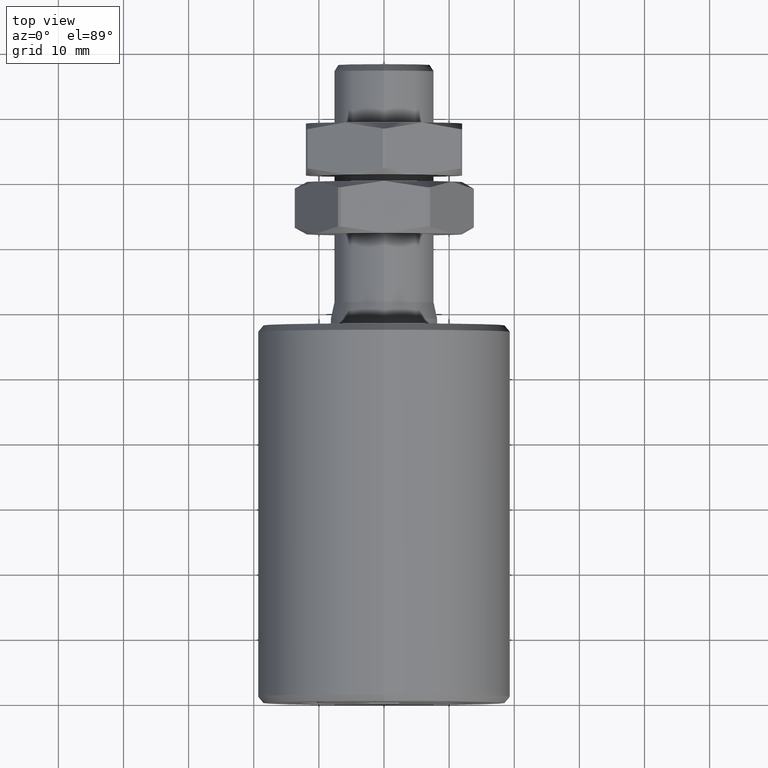
[diagram: clean part render]
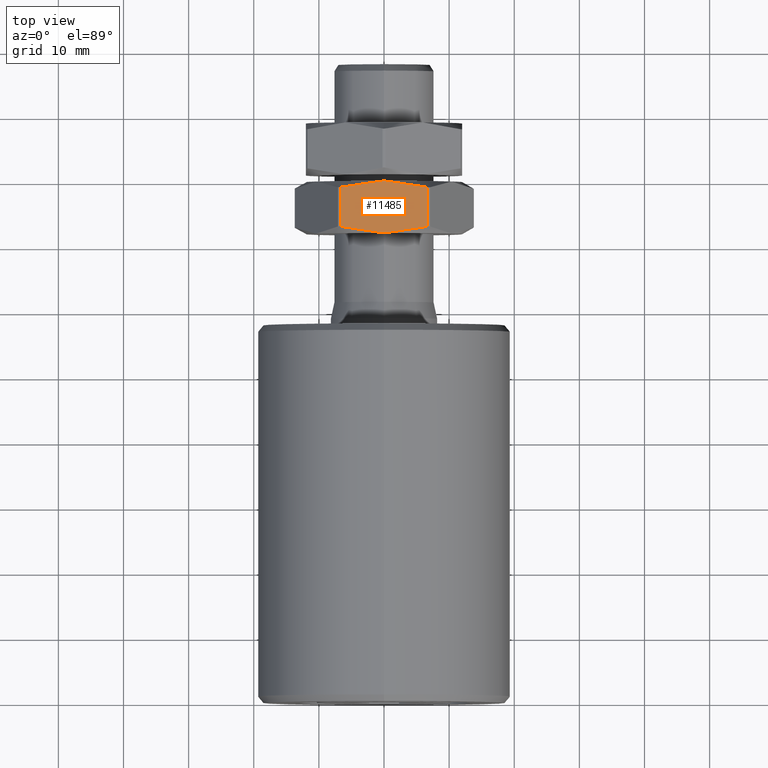
[diagram: same view with one face highlighted and labeled with its STEP entity id]
A machine part, top view. The second image highlights one B-rep face of the part: STEP entity #11485.
In plain terms, the highlighted planar face has unit normal (0, 0, -1).
Its self-contained STEP definition (entity closure, byte-faithful):
#137 = CARTESIAN_POINT ( 'NONE',  ( -6.639528095680689468, 4.000000000000000000, 12.00000000000000000 ) ) ;
#582 = ORIENTED_EDGE ( 'NONE', *, *, #4692, .T. ) ;
#618 = B_SPLINE_CURVE_WITH_KNOTS ( 'NONE', 3,
 ( #3241, #12665, #13918, #3346, #10226, #11579, #9253, #3190 ),
 .UNSPECIFIED., .F., .F.,
 ( 4, 2, 2, 4 ),
 ( 0.01936970057594180825, 0.02104774807343687271, 0.02272579557093193717, 0.02608189056592206609 ),
 .UNSPECIFIED. ) ;
#709 = CARTESIAN_POINT ( 'NONE',  ( 0.5605972413833055779, 4.000000000000000000, 12.00000000000000178 ) ) ;
#1264 = CARTESIAN_POINT ( 'NONE',  ( -4.450555589882174701, 3.564590613802869346, 12.00000000000000178 ) ) ;
#1314 = VERTEX_POINT ( 'NONE', #9175 ) ;
#1474 = CARTESIAN_POINT ( 'NONE',  ( 6.639528095680693909, 4.000000000000000000, 12.00000000000000000 ) ) ;
#1612 = LINE ( 'NONE', #137, #11108 ) ;
#1765 = CARTESIAN_POINT ( 'NONE',  ( -5.557285300470971023, -3.312721408234605480, 11.99999999999999822 ) ) ;
#1825 = EDGE_CURVE ( 'NONE', #11648, #5638, #1612, .T. ) ;
#1875 = CARTESIAN_POINT ( 'NONE',  ( -4.450555589882172924, -3.564590613802868901, 12.00000000000000178 ) ) ;
#2217 = CARTESIAN_POINT ( 'NONE',  ( -6.735557395310443749E-17, 4.000000000000000000, 12.00000000000000000 ) ) ;
#2236 = B_SPLINE_CURVE_WITH_KNOTS ( 'NONE', 3,
 ( #2675, #10997, #13395, #7839, #5555, #15019, #709, #3047 ),
 .UNSPECIFIED., .F., .F.,
 ( 4, 2, 2, 4 ),
 ( 0.005378634189493580742, 0.008726149205378667950, 0.01039990671332120982, 0.01207366422126375342 ),
 .UNSPECIFIED. ) ;
#2351 = PLANE ( 'NONE',  #11637 ) ;
#2411 = ORIENTED_EDGE ( 'NONE', *, *, #15076, .T. ) ;
#2571 = CARTESIAN_POINT ( 'NONE',  ( -6.639528095681156650, 3.010220883462259245, 12.00000000000000000 ) ) ;
#2579 = ORIENTED_EDGE ( 'NONE', *, *, #3008, .T. ) ;
#2675 = CARTESIAN_POINT ( 'NONE',  ( 6.639528095680693021, 3.010220883462388919, 12.00000000000000000 ) ) ;
#3008 = EDGE_CURVE ( 'NONE', #5024, #1314, #618, .T. ) ;
#3047 = CARTESIAN_POINT ( 'NONE',  ( -6.735557395310443749E-17, 4.000000000000000000, 12.00000000000000000 ) ) ;
#3068 = CARTESIAN_POINT ( 'NONE',  ( -2.234743191283679487, -3.907875498875722720, 12.00000000000000178 ) ) ;
#3190 = CARTESIAN_POINT ( 'NONE',  ( 6.639528095680693021, -3.010220883462388919, 12.00000000000000000 ) ) ;
#3241 = CARTESIAN_POINT ( 'NONE',  ( -6.735557395310443749E-17, -4.000000000000000000, 12.00000000000000000 ) ) ;
#3346 = CARTESIAN_POINT ( 'NONE',  ( 2.250940326994608220, -3.886546577122182544, 12.00000000000000178 ) ) ;
#3520 = B_SPLINE_CURVE_WITH_KNOTS ( 'NONE', 3,
 ( #12120, #10888, #4849, #1264, #13188, #2571 ),
 .UNSPECIFIED., .F., .F.,
 ( 4, 2, 4 ),
 ( 0.01207366422126375342, 0.01542013120109712691, 0.01876659818093049867 ),
 .UNSPECIFIED. ) ;
#3871 = DIRECTION ( 'NONE',  ( 0.000000000000000000, -1.000000000000000000, 0.000000000000000000 ) ) ;
#4639 = ORIENTED_EDGE ( 'NONE', *, *, #8584, .T. ) ;
#4692 = EDGE_CURVE ( 'NONE', #5638, #5024, #12487, .T. ) ;
#4849 = CARTESIAN_POINT ( 'NONE',  ( -2.234743191283681263, 3.907875498875722720, 12.00000000000000178 ) ) ;
#5024 = VERTEX_POINT ( 'NONE', #8654 ) ;
#5033 = DIRECTION ( 'NONE',  ( -1.000000000000000000, 0.000000000000000000, -0.000000000000000000 ) ) ;
#5298 = CARTESIAN_POINT ( 'NONE',  ( -6.735557395310443749E-17, -4.000000000000000000, 12.00000000000000000 ) ) ;
#5555 = CARTESIAN_POINT ( 'NONE',  ( 2.250940326994607776, 3.886546577122183432, 12.00000000000000178 ) ) ;
#5638 = VERTEX_POINT ( 'NONE', #7635 ) ;
#5915 = VERTEX_POINT ( 'NONE', #2217 ) ;
#6012 = ORIENTED_EDGE ( 'NONE', *, *, #1825, .T. ) ;
#7020 = EDGE_CURVE ( 'NONE', #8878, #5915, #2236, .T. ) ;
#7147 = CARTESIAN_POINT ( 'NONE',  ( -6.928203230275501667, 4.000000000000000000, 12.00000000000000000 ) ) ;
#7424 = DIRECTION ( 'NONE',  ( -0.000000000000000000, 1.000000000000000000, -0.000000000000000000 ) ) ;
#7635 = CARTESIAN_POINT ( 'NONE',  ( -6.639528095681156650, -3.010220883462259245, 12.00000000000000000 ) ) ;
#7839 = CARTESIAN_POINT ( 'NONE',  ( 2.812232842606246397, 3.818972809719021200, 12.00000000000000000 ) ) ;
#8584 = EDGE_CURVE ( 'NONE', #5915, #11648, #3520, .T. ) ;
#8654 = CARTESIAN_POINT ( 'NONE',  ( -6.735557395310443749E-17, -4.000000000000000000, 12.00000000000000000 ) ) ;
#8809 = ORIENTED_EDGE ( 'NONE', *, *, #7020, .T. ) ;
#8878 = VERTEX_POINT ( 'NONE', #14961 ) ;
#8984 = CARTESIAN_POINT ( 'NONE',  ( -6.639528095681156650, -3.010220883462259245, 12.00000000000000000 ) ) ;
#9175 = CARTESIAN_POINT ( 'NONE',  ( 6.639528095680693021, -3.010220883462388919, 12.00000000000000000 ) ) ;
#9253 = CARTESIAN_POINT ( 'NONE',  ( 5.564852187614547141, -3.310606367744593825, 12.00000000000000178 ) ) ;
#9418 = LINE ( 'NONE', #1474, #12072 ) ;
#9599 = DIRECTION ( 'NONE',  ( 0.000000000000000000, 0.000000000000000000, -1.000000000000000000 ) ) ;
#10226 = CARTESIAN_POINT ( 'NONE',  ( 2.812232842606245509, -3.818972809719020312, 12.00000000000000000 ) ) ;
#10888 = CARTESIAN_POINT ( 'NONE',  ( -1.120843460520752455, 4.000000000000000000, 12.00000000000000000 ) ) ;
#10997 = CARTESIAN_POINT ( 'NONE',  ( 5.564852187614544476, 3.310606367744592493, 12.00000000000000000 ) ) ;
#11108 = VECTOR ( 'NONE', #3871, 1000.000000000000000 ) ;
#11402 = CARTESIAN_POINT ( 'NONE',  ( -1.120843460520752455, -3.999999999999999112, 12.00000000000000178 ) ) ;
#11485 = ADVANCED_FACE ( 'NONE', ( #12826 ), #2351, .F. ) ;
#11579 = CARTESIAN_POINT ( 'NONE',  ( 4.476170215682652831, -3.559454543503305146, 11.99999999999999822 ) ) ;
#11637 = AXIS2_PLACEMENT_3D ( 'NONE', #7147, #9599, #5033 ) ;
#11648 = VERTEX_POINT ( 'NONE', #12386 ) ;
#12072 = VECTOR ( 'NONE', #7424, 1000.000000000000000 ) ;
#12120 = CARTESIAN_POINT ( 'NONE',  ( -6.735557395310443749E-17, 4.000000000000000000, 12.00000000000000000 ) ) ;
#12386 = CARTESIAN_POINT ( 'NONE',  ( -6.639528095681156650, 3.010220883462259245, 12.00000000000000000 ) ) ;
#12487 = B_SPLINE_CURVE_WITH_KNOTS ( 'NONE', 3,
 ( #8984, #1765, #1875, #3068, #11402, #5298 ),
 .UNSPECIFIED., .F., .F.,
 ( 4, 2, 4 ),
 ( 0.01265961203048445068, 0.01601465630321313033, 0.01936970057594180825 ),
 .UNSPECIFIED. ) ;
#12665 = CARTESIAN_POINT ( 'NONE',  ( 0.5605972413833051338, -4.000000000000000000, 11.99999999999999822 ) ) ;
#12826 = FACE_OUTER_BOUND ( 'NONE', #14351, .T. ) ;
#13188 = CARTESIAN_POINT ( 'NONE',  ( -5.557285300470971912, 3.312721408234606368, 12.00000000000000178 ) ) ;
#13395 = CARTESIAN_POINT ( 'NONE',  ( 4.476170215682654607, 3.559454543503303814, 12.00000000000000000 ) ) ;
#13918 = CARTESIAN_POINT ( 'NONE',  ( 1.122912357192196842, -3.977208455690127487, 12.00000000000000178 ) ) ;
#14351 = EDGE_LOOP ( 'NONE', ( #2579, #2411, #8809, #4639, #6012, #582 ) ) ;
#14961 = CARTESIAN_POINT ( 'NONE',  ( 6.639528095680693021, 3.010220883462388919, 12.00000000000000000 ) ) ;
#15019 = CARTESIAN_POINT ( 'NONE',  ( 1.122912357192195287, 3.977208455690126598, 12.00000000000000178 ) ) ;
#15076 = EDGE_CURVE ( 'NONE', #1314, #8878, #9418, .T. ) ;